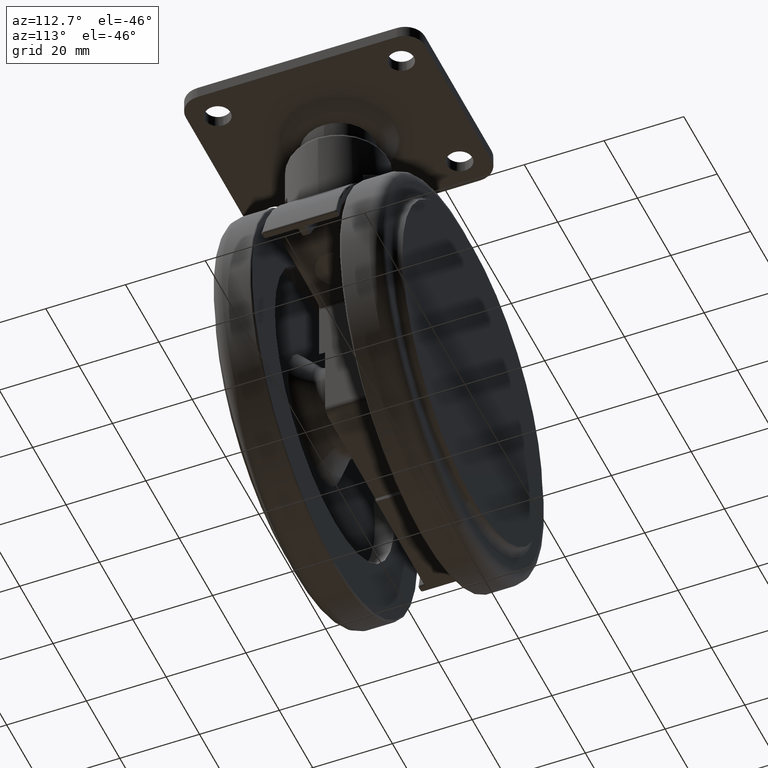
[diagram: clean part render]
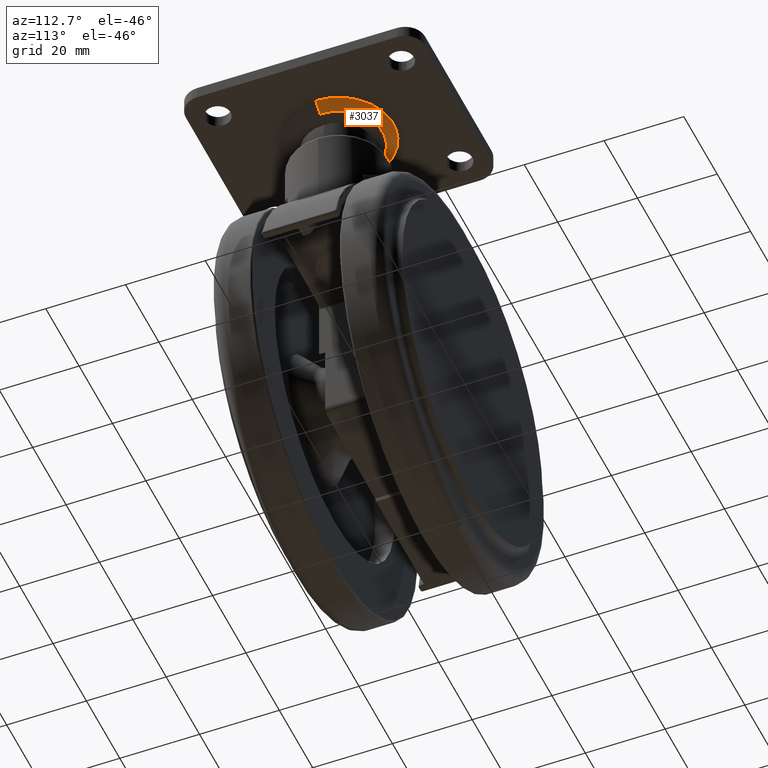
[diagram: same view with one face highlighted and labeled with its STEP entity id]
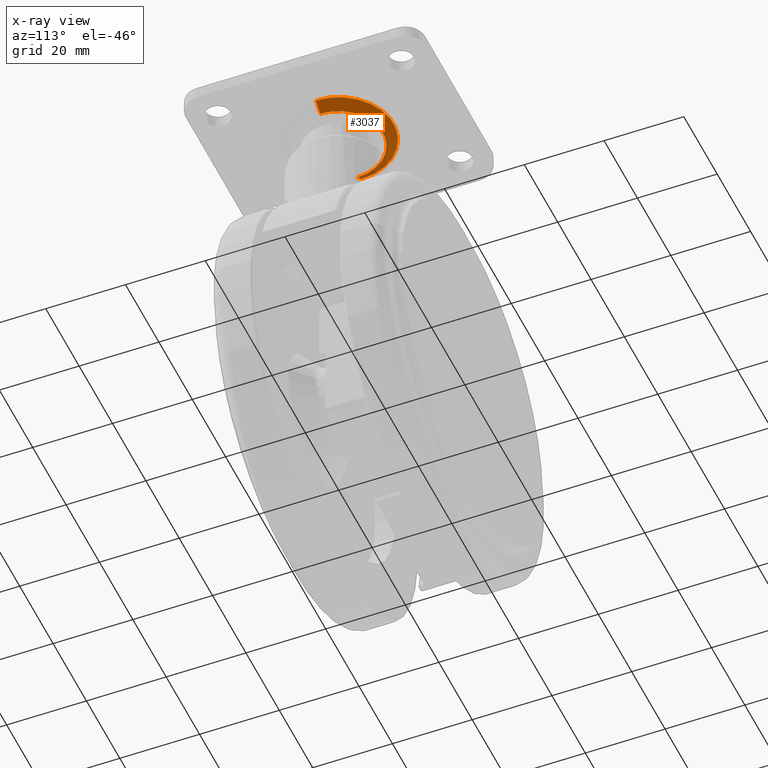
[diagram: x-ray of the same camera — body ghosted, the highlighted face saturated]
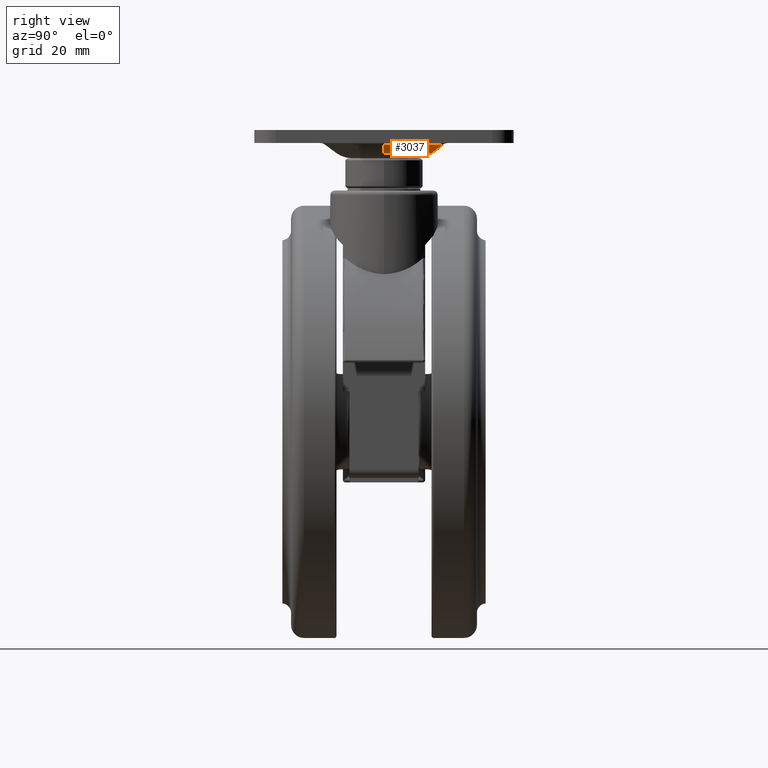
[diagram: same view with one face highlighted and labeled with its STEP entity id]
A machine part, auxiliary view. The second image highlights one B-rep face of the part: STEP entity #3037.
The next image is the same camera in x-ray: the body ghosted, the highlighted face saturated — about 9% of this face is hidden behind the body in this view.
A second angle (right view) of the same face is appended — the face is thin or edge-on in the first view.
In plain terms, the highlighted conical surface has half-angle 53.616 deg.
Its self-contained STEP definition (entity closure, byte-faithful):
#155 = DIRECTION ( 'NONE',  ( 0.0000000000000000000, 0.0000000000000000000, -1.000000000000000000 ) ) ;
#440 = DIRECTION ( 'NONE',  ( -0.8050558373533637200, 9.859090543496891800E-017, 0.5931990380498557400 ) ) ;
#878 = CARTESIAN_POINT ( 'NONE',  ( 0.0000000000000000000, 0.0000000000000000000, 8.669664975879760100 ) ) ;
#1233 = VECTOR ( 'NONE', #7204, 1000.000000000000100 ) ;
#1276 = EDGE_CURVE ( 'NONE', #1305, #3199, #1733, .T. ) ;
#1305 = VERTEX_POINT ( 'NONE', #8239 ) ;
#1733 = CIRCLE ( 'NONE', #5110, 13.72086584424490000 ) ;
#1953 = AXIS2_PLACEMENT_3D ( 'NONE', #4108, #155, #4779 ) ;
#2019 = CIRCLE ( 'NONE', #1953, 11.08740246726539900 ) ;
#2484 = AXIS2_PLACEMENT_3D ( 'NONE', #878, #5514, #2849 ) ;
#2835 = EDGE_CURVE ( 'NONE', #6061, #1305, #6803, .T. ) ;
#2849 = DIRECTION ( 'NONE',  ( 1.000000000000000000, 0.0000000000000000000, 0.0000000000000000000 ) ) ;
#2968 = ORIENTED_EDGE ( 'NONE', *, *, #7141, .F. ) ;
#3037 = ADVANCED_FACE ( 'NONE', ( #6119 ), #4127, .T. ) ;
#3199 = VERTEX_POINT ( 'NONE', #6181 ) ;
#3339 = ORIENTED_EDGE ( 'NONE', *, *, #2835, .T. ) ;
#4108 = CARTESIAN_POINT ( 'NONE',  ( 0.0000000000000000000, 0.0000000000000000000, 8.669664975879760100 ) ) ;
#4127 = CONICAL_SURFACE ( 'NONE', #2484, 11.08740246726539900, 0.9357695914045758300 ) ;
#4779 = DIRECTION ( 'NONE',  ( -1.000000000000000000, 0.0000000000000000000, 0.0000000000000000000 ) ) ;
#4852 = CARTESIAN_POINT ( 'NONE',  ( -11.08740246726536300, 0.0000000000000000000, 8.669664975879760100 ) ) ;
#4932 = EDGE_CURVE ( 'NONE', #6061, #6311, #2019, .T. ) ;
#5070 = CARTESIAN_POINT ( 'NONE',  ( -11.08740246726539900, 1.357815194239503900E-015, 8.669664975879760100 ) ) ;
#5110 = AXIS2_PLACEMENT_3D ( 'NONE', #7289, #7315, #7404 ) ;
#5178 = LINE ( 'NONE', #5858, #1233 ) ;
#5514 = DIRECTION ( 'NONE',  ( 0.0000000000000000000, 0.0000000000000000000, 1.000000000000000000 ) ) ;
#5858 = CARTESIAN_POINT ( 'NONE',  ( 11.08740246726539900, 0.0000000000000000000, 8.669664975879760100 ) ) ;
#6061 = VERTEX_POINT ( 'NONE', #4852 ) ;
#6119 = FACE_OUTER_BOUND ( 'NONE', #6368, .T. ) ;
#6181 = CARTESIAN_POINT ( 'NONE',  ( 13.72086584424488700, 0.0000000000000000000, 10.61011167470678100 ) ) ;
#6311 = VERTEX_POINT ( 'NONE', #6602 ) ;
#6368 = EDGE_LOOP ( 'NONE', ( #7540, #3339, #7814, #2968 ) ) ;
#6594 = VECTOR ( 'NONE', #440, 1000.000000000000100 ) ;
#6602 = CARTESIAN_POINT ( 'NONE',  ( 11.08740246726536300, 1.357815194239499600E-015, 8.669664975879760100 ) ) ;
#6803 = LINE ( 'NONE', #5070, #6594 ) ;
#7141 = EDGE_CURVE ( 'NONE', #6311, #3199, #5178, .T. ) ;
#7204 = DIRECTION ( 'NONE',  ( 0.8050558373533637200, 0.0000000000000000000, 0.5931990380498557400 ) ) ;
#7289 = CARTESIAN_POINT ( 'NONE',  ( 0.0000000000000000000, 0.0000000000000000000, 10.61011167470678100 ) ) ;
#7315 = DIRECTION ( 'NONE',  ( 0.0000000000000000000, 0.0000000000000000000, -1.000000000000000000 ) ) ;
#7404 = DIRECTION ( 'NONE',  ( -1.000000000000000000, 0.0000000000000000000, 0.0000000000000000000 ) ) ;
#7540 = ORIENTED_EDGE ( 'NONE', *, *, #4932, .F. ) ;
#7814 = ORIENTED_EDGE ( 'NONE', *, *, #1276, .T. ) ;
#8239 = CARTESIAN_POINT ( 'NONE',  ( -13.72086584424488700, 1.680321443768475100E-015, 10.61011167470678100 ) ) ;